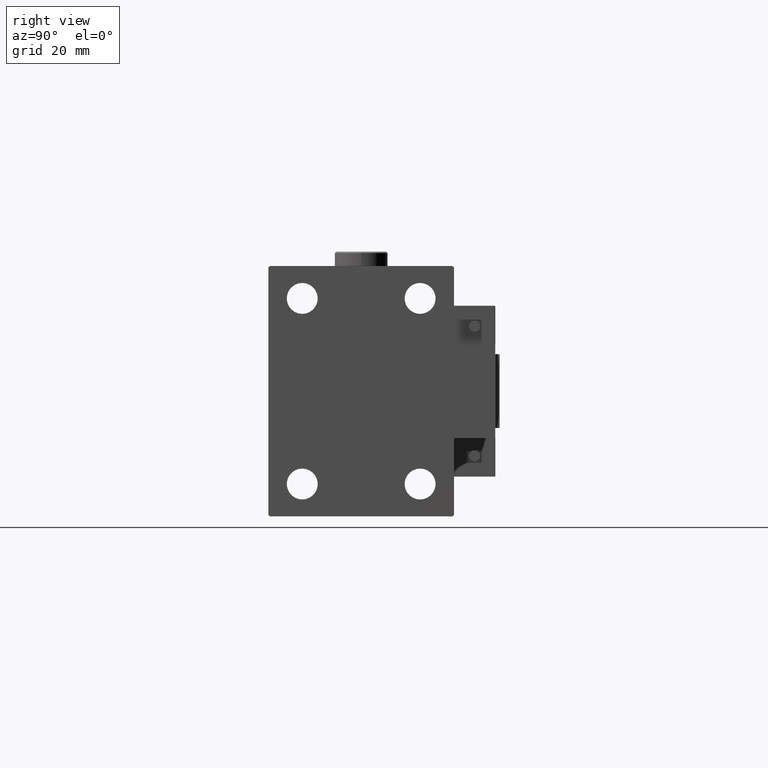
[diagram: clean part render]
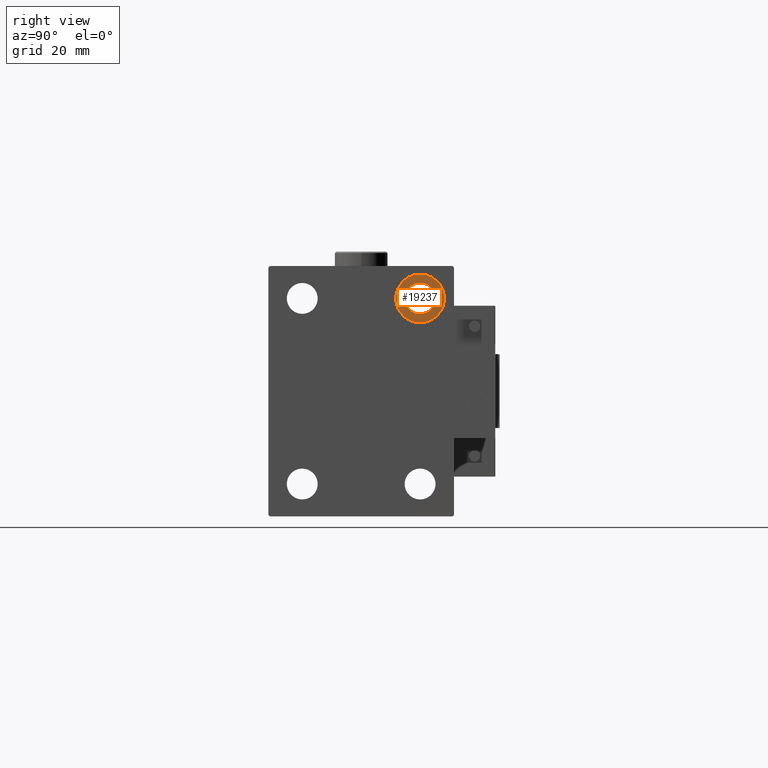
[diagram: same view with one face highlighted and labeled with its STEP entity id]
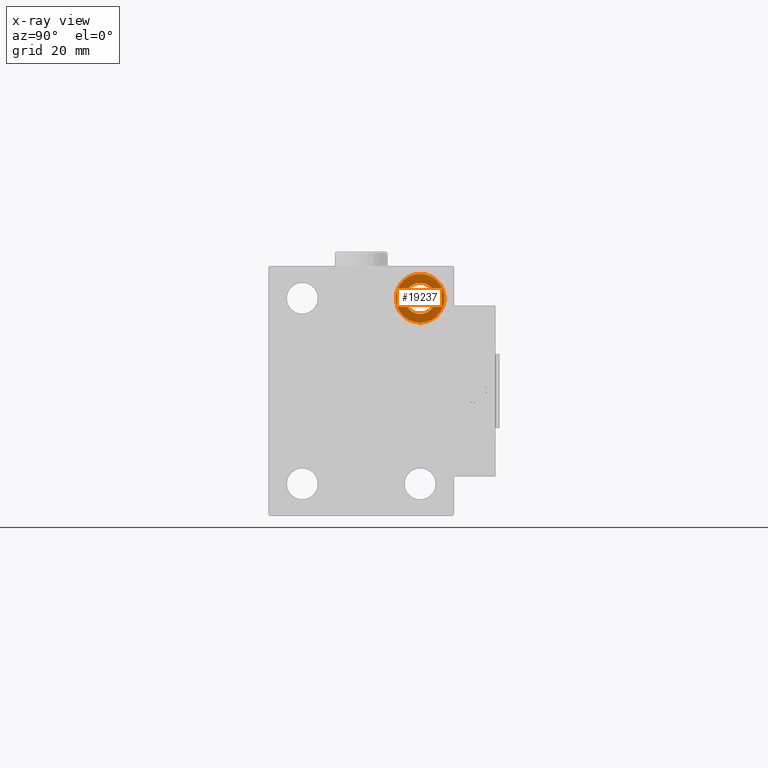
[diagram: x-ray of the same camera — body ghosted, the highlighted face saturated]
A machine part, right view. The second image highlights one B-rep face of the part: STEP entity #19237.
The next image is the same camera in x-ray: the body ghosted, the highlighted face saturated — about 0% of this face is hidden behind the body in this view.
In plain terms, the highlighted planar face has unit normal (1, 0, 0).
Its self-contained STEP definition (entity closure, byte-faithful):
#2136 = CIRCLE ( 'NONE', #16303, 5.249999999999997335 ) ;
#3112 = CARTESIAN_POINT ( 'NONE',  ( 131.9999999999999716, 20.00000000000000355, 36.75000000000000000 ) ) ;
#4340 = DIRECTION ( 'NONE',  ( 0.000000000000000000, 0.000000000000000000, 1.000000000000000000 ) ) ;
#4469 = CARTESIAN_POINT ( 'NONE',  ( 131.9999999999999716, 20.00000000000000355, 31.50000000000000000 ) ) ;
#5446 = CARTESIAN_POINT ( 'NONE',  ( 131.9999999999999716, 20.00000000000000355, 26.25000000000000355 ) ) ;
#6058 = VERTEX_POINT ( 'NONE', #5446 ) ;
#6206 = EDGE_CURVE ( 'NONE', #6058, #24145, #12053, .T. ) ;
#7904 = EDGE_CURVE ( 'NONE', #24145, #6058, #2136, .T. ) ;
#8514 = CARTESIAN_POINT ( 'NONE',  ( 131.9999999999999716, 20.00000000000000355, 31.50000000000000000 ) ) ;
#10922 = AXIS2_PLACEMENT_3D ( 'NONE', #4469, #16969, #32869 ) ;
#11533 = ORIENTED_EDGE ( 'NONE', *, *, #38755, .F. ) ;
#12053 = CIRCLE ( 'NONE', #32049, 5.249999999999997335 ) ;
#13468 = DIRECTION ( 'NONE',  ( -1.000000000000000000, -0.000000000000000000, -0.000000000000000000 ) ) ;
#13581 = EDGE_LOOP ( 'NONE', ( #17280, #45282 ) ) ;
#16303 = AXIS2_PLACEMENT_3D ( 'NONE', #24428, #19993, #44227 ) ;
#16323 = FACE_OUTER_BOUND ( 'NONE', #29193, .T. ) ;
#16969 = DIRECTION ( 'NONE',  ( -1.000000000000000000, -0.000000000000000000, -0.000000000000000000 ) ) ;
#17280 = ORIENTED_EDGE ( 'NONE', *, *, #7904, .T. ) ;
#17896 = CARTESIAN_POINT ( 'NONE',  ( 131.9999999999999716, 20.00000000000000355, 31.50000000000000000 ) ) ;
#17920 = VERTEX_POINT ( 'NONE', #29388 ) ;
#19237 = ADVANCED_FACE ( 'NONE', ( #16323, #25172 ), #28053, .T. ) ;
#19993 = DIRECTION ( 'NONE',  ( -1.000000000000000000, -0.000000000000000000, -0.000000000000000000 ) ) ;
#20510 = DIRECTION ( 'NONE',  ( -1.000000000000000000, -0.000000000000000000, -0.000000000000000000 ) ) ;
#23913 = EDGE_CURVE ( 'NONE', #17920, #45240, #25922, .T. ) ;
#24127 = CARTESIAN_POINT ( 'NONE',  ( 131.9999999999999716, 0.000000000000000000, 0.000000000000000000 ) ) ;
#24145 = VERTEX_POINT ( 'NONE', #3112 ) ;
#24428 = CARTESIAN_POINT ( 'NONE',  ( 131.9999999999999716, 20.00000000000000355, 31.50000000000000000 ) ) ;
#25172 = FACE_BOUND ( 'NONE', #13581, .T. ) ;
#25922 = CIRCLE ( 'NONE', #10922, 8.249999999999992895 ) ;
#28053 = PLANE ( 'NONE',  #44975 ) ;
#29193 = EDGE_LOOP ( 'NONE', ( #11533, #47089 ) ) ;
#29388 = CARTESIAN_POINT ( 'NONE',  ( 131.9999999999999716, 20.00000000000000355, 39.74999999999999289 ) ) ;
#32049 = AXIS2_PLACEMENT_3D ( 'NONE', #8514, #20510, #40318 ) ;
#32869 = DIRECTION ( 'NONE',  ( 0.000000000000000000, 0.000000000000000000, 1.000000000000000000 ) ) ;
#37215 = DIRECTION ( 'NONE',  ( 0.000000000000000000, 0.000000000000000000, 1.000000000000000000 ) ) ;
#38755 = EDGE_CURVE ( 'NONE', #45240, #17920, #40878, .T. ) ;
#39232 = AXIS2_PLACEMENT_3D ( 'NONE', #17896, #13468, #37215 ) ;
#40038 = DIRECTION ( 'NONE',  ( 1.000000000000000000, 0.000000000000000000, -0.000000000000000000 ) ) ;
#40318 = DIRECTION ( 'NONE',  ( 0.000000000000000000, 0.000000000000000000, -1.000000000000000000 ) ) ;
#40878 = CIRCLE ( 'NONE', #39232, 8.249999999999992895 ) ;
#41493 = CARTESIAN_POINT ( 'NONE',  ( 131.9999999999999716, 20.00000000000000355, 23.25000000000000355 ) ) ;
#44227 = DIRECTION ( 'NONE',  ( 0.000000000000000000, 0.000000000000000000, -1.000000000000000000 ) ) ;
#44975 = AXIS2_PLACEMENT_3D ( 'NONE', #24127, #40038, #4340 ) ;
#45240 = VERTEX_POINT ( 'NONE', #41493 ) ;
#45282 = ORIENTED_EDGE ( 'NONE', *, *, #6206, .T. ) ;
#47089 = ORIENTED_EDGE ( 'NONE', *, *, #23913, .F. ) ;